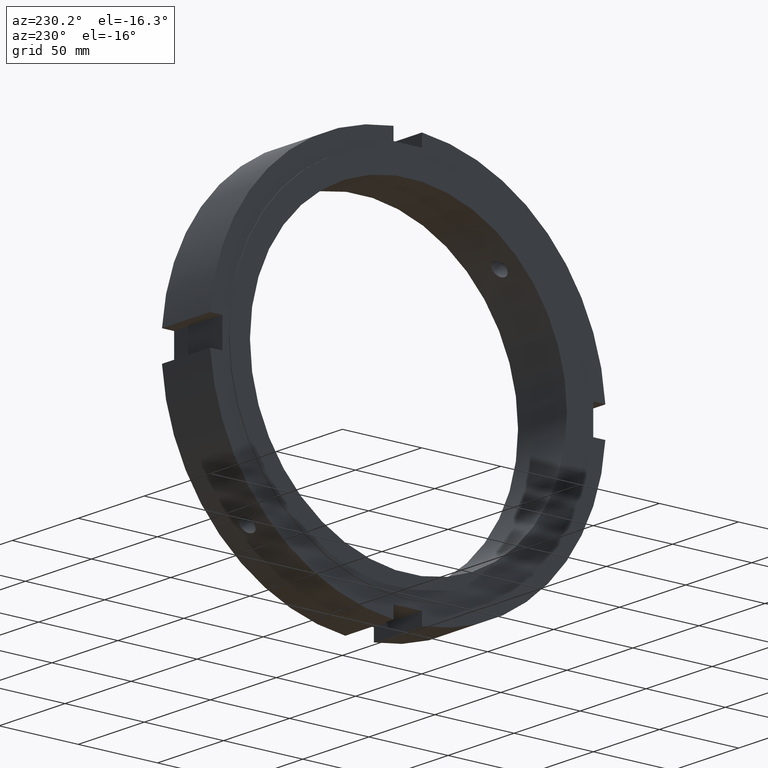
[diagram: clean part render]
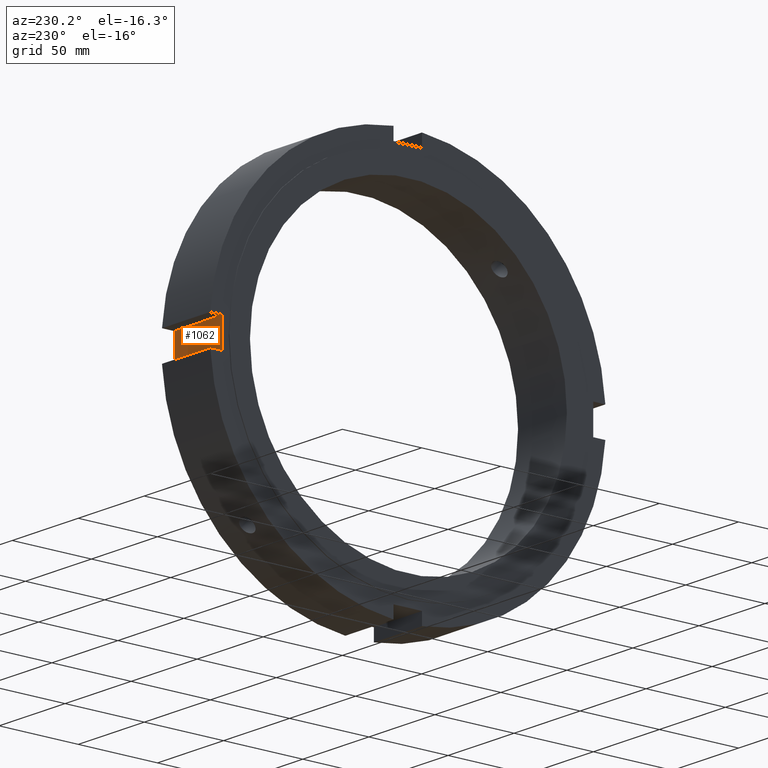
[diagram: same view with one face highlighted and labeled with its STEP entity id]
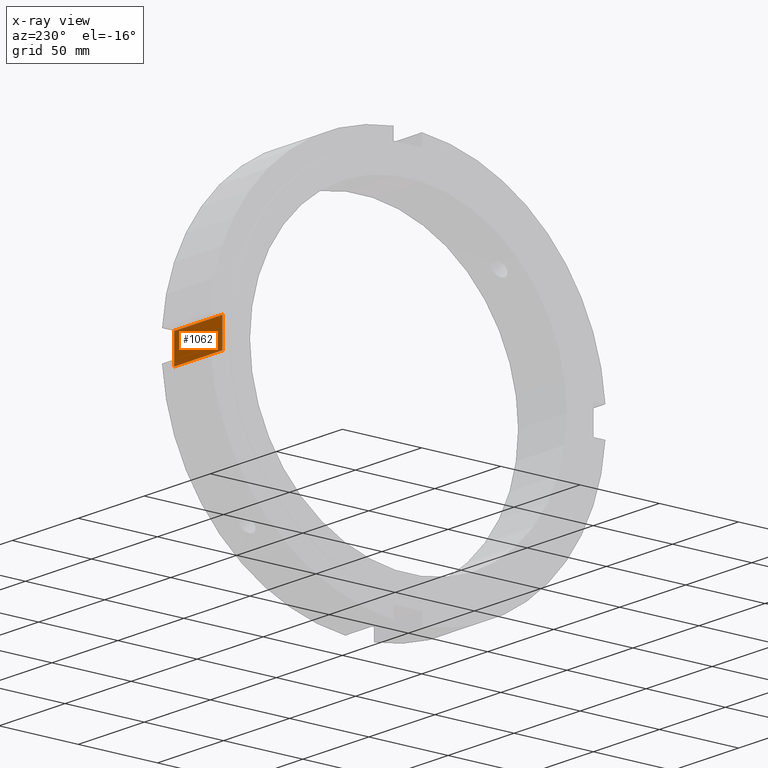
[diagram: x-ray of the same camera — body ghosted, the highlighted face saturated]
A machine part, auxiliary view. The second image highlights one B-rep face of the part: STEP entity #1062.
The next image is the same camera in x-ray: the body ghosted, the highlighted face saturated — about 0% of this face is hidden behind the body in this view.
In plain terms, the highlighted planar face has unit normal (0, -1, 0).
Its self-contained STEP definition (entity closure, byte-faithful):
#947=CARTESIAN_POINT('',(36.999999999999972,117.0,-8.999999999999993));
#948=VERTEX_POINT('',#947);
#955=CARTESIAN_POINT('',(36.999999999999972,117.0,8.999999999999993));
#956=VERTEX_POINT('',#955);
#957=CARTESIAN_POINT('',(36.999999999999972,117.0,-8.999999999999993));
#958=DIRECTION('',(0.0,0.0,1.0));
#959=VECTOR('',#958,17.999999999999986);
#960=LINE('',#957,#959);
#961=EDGE_CURVE('',#948,#956,#960,.T.);
#1003=CARTESIAN_POINT('',(0.499999999999963,117.0,-8.999999999999993));
#1004=VERTEX_POINT('',#1003);
#1011=CARTESIAN_POINT('',(36.999999999999972,117.0,-8.999999999999993));
#1012=DIRECTION('',(-1.0,0.0,0.0));
#1013=VECTOR('',#1012,36.500000000000014);
#1014=LINE('',#1011,#1013);
#1015=EDGE_CURVE('',#948,#1004,#1014,.T.);
#1027=CARTESIAN_POINT('',(0.499999999999963,117.0,8.999999999999993));
#1028=VERTEX_POINT('',#1027);
#1037=CARTESIAN_POINT('',(36.999999999999972,117.0,8.999999999999993));
#1038=DIRECTION('',(-1.0,0.0,0.0));
#1039=VECTOR('',#1038,36.500000000000014);
#1040=LINE('',#1037,#1039);
#1041=EDGE_CURVE('',#956,#1028,#1040,.T.);
#1046=CARTESIAN_POINT('',(36.999999999999972,117.0,8.999999999999993));
#1047=DIRECTION('',(0.0,-1.0,0.0));
#1048=DIRECTION('',(0.0,0.0,-1.0));
#1049=AXIS2_PLACEMENT_3D('',#1046,#1047,#1048);
#1050=PLANE('',#1049);
#1051=CARTESIAN_POINT('',(0.499999999999965,117.0,8.999999999999993));
#1052=DIRECTION('',(0.0,0.0,-1.0));
#1053=VECTOR('',#1052,17.999999999999986);
#1054=LINE('',#1051,#1053);
#1055=EDGE_CURVE('',#1028,#1004,#1054,.T.);
#1056=ORIENTED_EDGE('',*,*,#1055,.F.);
#1057=ORIENTED_EDGE('',*,*,#1041,.F.);
#1058=ORIENTED_EDGE('',*,*,#961,.F.);
#1059=ORIENTED_EDGE('',*,*,#1015,.T.);
#1060=EDGE_LOOP('',(#1056,#1057,#1058,#1059));
#1061=FACE_OUTER_BOUND('',#1060,.T.);
#1062=ADVANCED_FACE('',(#1061),#1050,.F.);